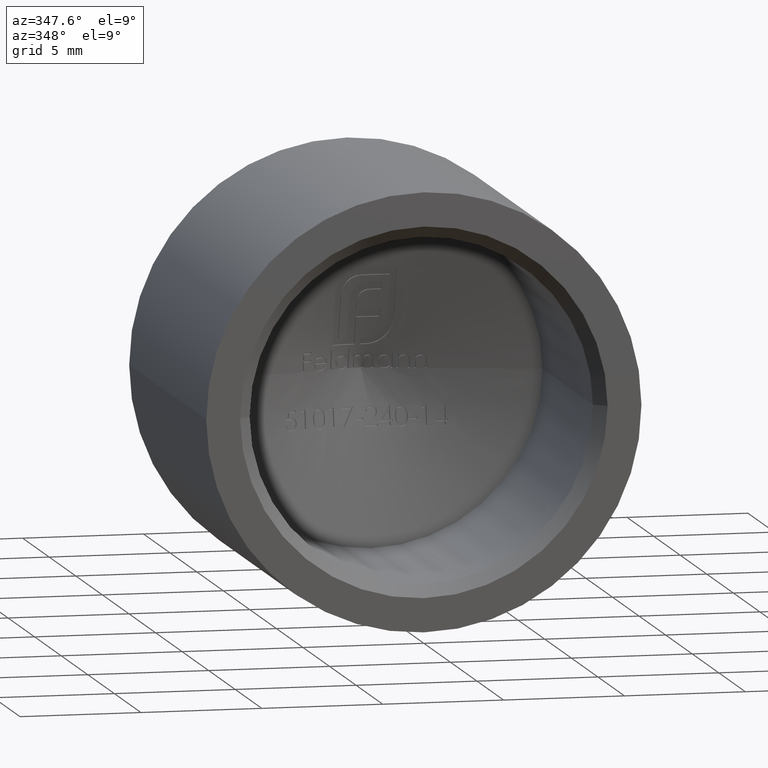
[diagram: clean part render]
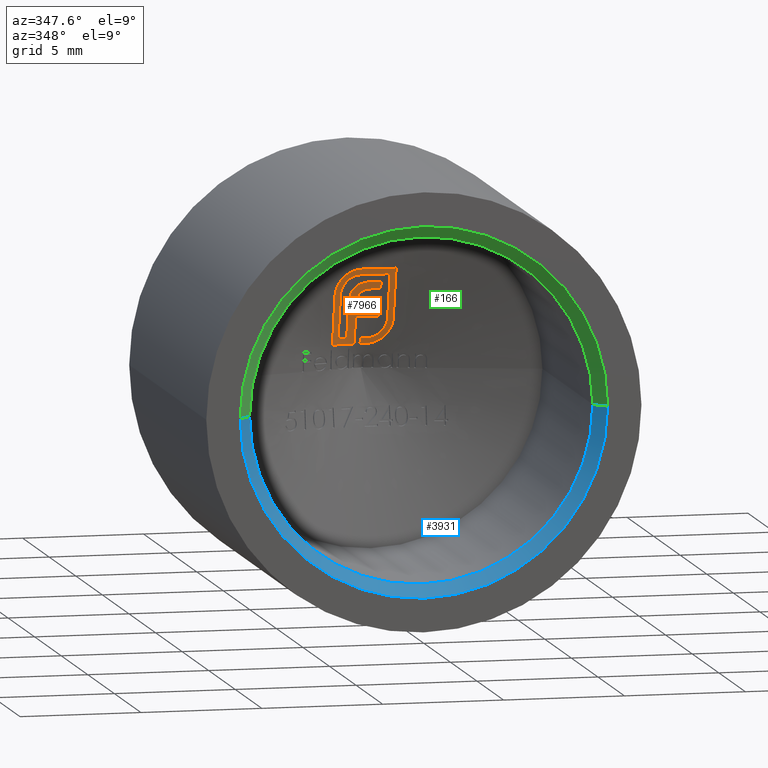
[diagram: same view with three faces highlighted in distinct colors, each labeled with its STEP entity id]
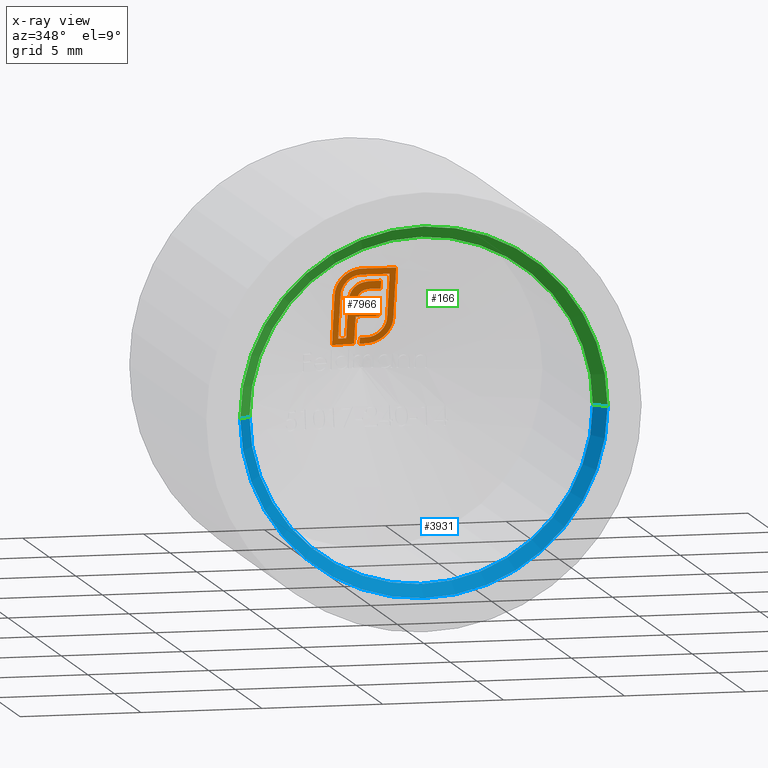
[diagram: x-ray of the same camera — body ghosted, the three highlighted faces saturated]
A machine part, auxiliary view with three faces highlighted in distinct colors.
The next image is the same camera in x-ray (body ghosted, the three faces saturated) — at least one of them is partly hidden behind the body in this view.
Their STEP definitions:

[orange] entity #7966 — the highlighted conical surface has half-angle 75 deg.
#25 = CARTESIAN_POINT ( 'NONE',  ( -0.2208271837044394892, 10.87963206977911135, 4.198047868689132933 ) ) ;
#46 = CARTESIAN_POINT ( 'NONE',  ( 0.6536455928817421768, 11.01174331917845528, 3.652465564041724289 ) ) ;
#59 = CARTESIAN_POINT ( 'NONE',  ( 1.191073256184313811, 11.43205855722340658, 1.780136930600507039 ) ) ;
#79 = CARTESIAN_POINT ( 'NONE',  ( -0.03996251244917391199, 11.12801760613936075, 3.276341227047846250 ) ) ;
#108 = ORIENTED_EDGE ( 'NONE', *, *, #11668, .F. ) ;
#124 = CARTESIAN_POINT ( 'NONE',  ( -1.155135539889375229, 11.00165736864102328, 3.565826977095339245 ) ) ;
#148 = VERTEX_POINT ( 'NONE', #1704 ) ;
#164 = EDGE_CURVE ( 'NONE', #7867, #8579, #2939, .T. ) ;
#206 = CARTESIAN_POINT ( 'NONE',  ( -0.1372191281091166837, 11.14311459738662080, 3.217283663620670087 ) ) ;
#238 = CONICAL_SURFACE ( 'NONE', #4882, 0.02588190451025175476, 1.308996938995750536 ) ;
#261 = EDGE_CURVE ( 'NONE', #4581, #148, #12054, .T. ) ;
#296 = CARTESIAN_POINT ( 'NONE',  ( 0.9830367413575119562, 10.91601549010545824, 3.947183960046360962 ) ) ;
#302 = CARTESIAN_POINT ( 'NONE',  ( -0.3126968602489273441, 11.72522321205531171, 1.000000000000000000 ) ) ;
#327 = CARTESIAN_POINT ( 'NONE',  ( -0.5182543294720672877, 11.10744853578509073, 3.313075253422795186 ) ) ;
#340 = CARTESIAN_POINT ( 'NONE',  ( -1.001657293610527688, 11.57640609660257169, 1.251698499420081268 ) ) ;
#362 = CARTESIAN_POINT ( 'NONE',  ( -0.3126968602489273441, 11.25486714959354906, 2.785646752263383430 ) ) ;
#390 = EDGE_CURVE ( 'NONE', #1028, #8873, #5983, .T. ) ;
#425 = ORIENTED_EDGE ( 'NONE', *, *, #6741, .F. ) ;
#445 = VERTEX_POINT ( 'NONE', #669 ) ;
#448 = CARTESIAN_POINT ( 'NONE',  ( 0.6536455928817421768, 11.40088233175096910, 2.161537207782977088 ) ) ;
#457 = CARTESIAN_POINT ( 'NONE',  ( -1.253355793030608956, 11.57633638178149127, 1.000000000000000000 ) ) ;
#538 = VERTEX_POINT ( 'NONE', #12874 ) ;
#542 = CARTESIAN_POINT ( 'NONE',  ( 0.5078777302037955632, 11.10602823443681864, 3.323074415565955952 ) ) ;
#565 = CARTESIAN_POINT ( 'NONE',  ( 1.234735240777593335, 10.83324338400742981, 4.198882459466442008 ) ) ;
#569 = ORIENTED_EDGE ( 'NONE', *, *, #3509, .F. ) ;
#597 = CARTESIAN_POINT ( 'NONE',  ( 0.1508906820503041479, 11.73498452615122645, 1.000000000000000000 ) ) ;
#638 = CARTESIAN_POINT ( 'NONE',  ( 0.2453583476918172190, 11.73096790411477031, 1.000905635432476570 ) ) ;
#651 = CARTESIAN_POINT ( 'NONE',  ( -0.3126968602489273441, 11.42075563887444112, 2.161537207782977088 ) ) ;
#669 = CARTESIAN_POINT ( 'NONE',  ( -0.4295568778368222262, 11.08168988161551560, 3.422598056918283227 ) ) ;
#724 = CARTESIAN_POINT ( 'NONE',  ( 0.6838237292918030175, 11.64903198048280331, 1.143185625945607464 ) ) ;
#736 = CARTESIAN_POINT ( 'NONE',  ( 1.234735240777593335, 11.35694442021383566, 2.083844558727288909 ) ) ;
#783 = CARTESIAN_POINT ( 'NONE',  ( -0.1015573170549587123, 11.03941868658707115, 3.605933914526483708 ) ) ;
#788 = VERTEX_POINT ( 'NONE', #457 ) ;
#797 = CARTESIAN_POINT ( 'NONE',  ( -0.6594243849602631213, 11.38171765039465733, 2.237439868141614330 ) ) ;
#867 = EDGE_CURVE ( 'NONE', #8457, #8747, #2678, .T. ) ;
#887 = CARTESIAN_POINT ( 'NONE',  ( 0.7358328579985035089, 11.55963200449527051, 1.494407766718016894 ) ) ;
#892 = CARTESIAN_POINT ( 'NONE',  ( -0.4732188624301016944, 10.88538192048867614, 4.155220474873162928 ) ) ;
#904 = CARTESIAN_POINT ( 'NONE',  ( -0.8878809163948264693, 11.59545419095895902, 1.251698499420081934 ) ) ;
#925 = B_SPLINE_CURVE_WITH_KNOTS ( 'NONE', 3,
 ( #5061, #6083, #2912, #3081, #1885, #1930 ),
 .UNSPECIFIED., .F., .F.,
 ( 4, 2, 4 ),
 ( 0.000000000000000000, 0.0001478887417600395851, 0.0002957774835200791702 ),
 .UNSPECIFIED. ) ;
#935 = CARTESIAN_POINT ( 'NONE',  ( 1.139919322385436029, 11.46978949995597397, 1.644612411368698401 ) ) ;
#986 = EDGE_CURVE ( 'NONE', #1712, #1028, #11606, .T. ) ;
#1003 = B_SPLINE_CURVE_WITH_KNOTS ( 'NONE', 3,
 ( #59, #6038, #5917, #935, #9961, #1018, #2053, #6000, #10082, #11088 ),
 .UNSPECIFIED., .F., .F.,
 ( 4, 3, 3, 4 ),
 ( 0.000000000000000000, 0.0001496904950075358953, 0.0002254258711029978309, 0.0003015573197085586583 ),
 .UNSPECIFIED. ) ;
#1018 = CARTESIAN_POINT ( 'NONE',  ( 1.119234215941169452, 11.48270598689731870, 1.600278556593517365 ) ) ;
#1028 = VERTEX_POINT ( 'NONE', #11759 ) ;
#1054 = CARTESIAN_POINT ( 'NONE',  ( -0.7970341974923722539, 11.00227527007243289, 3.660329849972501215 ) ) ;
#1111 = EDGE_CURVE ( 'NONE', #11356, #9452, #4702, .T. ) ;
#1119 = CARTESIAN_POINT ( 'NONE',  ( -0.06944714874109202130, 11.13161412452605425, 3.262423726147349878 ) ) ;
#1121 = CARTESIAN_POINT ( 'NONE',  ( -1.206129675286370162, 11.03039630192773402, 3.435397799288434584 ) ) ;
#1139 = EDGE_CURVE ( 'NONE', #8869, #11775, #8838, .T. ) ;
#1143 = CARTESIAN_POINT ( 'NONE',  ( 0.2157415709314986774, 11.11367724497087650, 3.323074415565955064 ) ) ;
#1166 = CARTESIAN_POINT ( 'NONE',  ( 0.2767399317603448927, 11.02448652352897085, 3.652465564041724289 ) ) ;
#1182 = CARTESIAN_POINT ( 'NONE',  ( -0.7791422275581961765, 10.91179201160238499, 4.008710647144484440 ) ) ;
#1203 = ORIENTED_EDGE ( 'NONE', *, *, #9218, .F. ) ;
#1222 = CARTESIAN_POINT ( 'NONE',  ( -0.1619921371596600712, 11.14861327931482293, 3.195608828266294665 ) ) ;
#1229 = CARTESIAN_POINT ( 'NONE',  ( -0.3879603547800210550, 11.07260171810715654, 3.461779580568326686 ) ) ;
#1335 = CARTESIAN_POINT ( 'NONE',  ( -0.3097984022537131343, 11.23398257449308346, 2.864382196147911230 ) ) ;
#1343 = DIRECTION ( 'NONE',  ( 1.000000000000000000, 0.000000000000000000, 0.000000000000000000 ) ) ;
#1356 = CARTESIAN_POINT ( 'NONE',  ( -1.001657293610527466, 11.43735029000877290, 1.875294946012386221 ) ) ;
#1371 = CARTESIAN_POINT ( 'NONE',  ( -0.2780241077777936276, 11.19453533780558985, 3.015514259386824936 ) ) ;
#1393 = CARTESIAN_POINT ( 'NONE',  ( -1.001657293610527688, 11.20813897576571705, 2.805595506568924424 ) ) ;
#1490 = ORIENTED_EDGE ( 'NONE', *, *, #4388, .F. ) ;
#1520 = ORIENTED_EDGE ( 'NONE', *, *, #1111, .F. ) ;
#1658 = VERTEX_POINT ( 'NONE', #9022 ) ;
#1677 = CARTESIAN_POINT ( 'NONE',  ( 0.8099858947781699570, 11.53144939375871481, 1.574845983025276563 ) ) ;
#1693 = ORIENTED_EDGE ( 'NONE', *, *, #10882, .F. ) ;
#1704 = CARTESIAN_POINT ( 'NONE',  ( -0.3126968602489273441, 11.72522321205531171, 1.000000000000000000 ) ) ;
#1712 = VERTEX_POINT ( 'NONE', #12375 ) ;
#1740 = CARTESIAN_POINT ( 'NONE',  ( 0.03415643410721622836, 11.03176358243605648, 3.635778855980707824 ) ) ;
#1801 = CARTESIAN_POINT ( 'NONE',  ( 0.8716515069738142163, 11.50269864028630629, 1.663728158845151794 ) ) ;
#1860 = CARTESIAN_POINT ( 'NONE',  ( -1.001657293610527688, 11.57640609660257169, 1.251698499420081268 ) ) ;
#1881 = CARTESIAN_POINT ( 'NONE',  ( 0.9830367413575104019, 11.07726358621828666, 3.327015815585791181 ) ) ;
#1885 = CARTESIAN_POINT ( 'NONE',  ( -0.5202346816014425945, 10.88794839241128010, 4.140225942866107900 ) ) ;
#1894 = CARTESIAN_POINT ( 'NONE',  ( -0.7736149235242828492, 11.61261760674426036, 1.251698499420080601 ) ) ;
#1928 = ORIENTED_EDGE ( 'NONE', *, *, #10378, .F. ) ;
#1930 = CARTESIAN_POINT ( 'NONE',  ( -0.4732188624301016944, 10.88538192048867614, 4.155220474873162928 ) ) ;
#1938 = EDGE_CURVE ( 'NONE', #538, #5946, #9769, .T. ) ;
#1943 = CARTESIAN_POINT ( 'NONE',  ( 0.7611759413084984160, 11.62730093474425175, 1.190798080507879497 ) ) ;
#1975 = CARTESIAN_POINT ( 'NONE',  ( -0.1695112343033198243, 10.87996326997864216, 4.198882459466442008 ) ) ;
#2013 = ORIENTED_EDGE ( 'NONE', *, *, #6736, .F. ) ;
#2042 = CARTESIAN_POINT ( 'NONE',  ( -0.9197302088308509926, 10.93342601522541102, 3.895863232141539623 ) ) ;
#2047 = CARTESIAN_POINT ( 'NONE',  ( -1.001657293610527688, 11.12920459761298986, 3.115037900739153098 ) ) ;
#2053 = CARTESIAN_POINT ( 'NONE',  ( 1.107494320517296460, 11.48921241211820465, 1.578852953785505608 ) ) ;
#2058 = CARTESIAN_POINT ( 'NONE',  ( -0.2720138771660565169, 10.87954065866299302, 4.195383536033015837 ) ) ;
#2124 = CARTESIAN_POINT ( 'NONE',  ( -0.09751797577028413488, 11.13585473794454472, 3.245838153666627424 ) ) ;
#2130 = EDGE_LOOP ( 'NONE', ( #2794, #1928, #2148, #4171, #2013, #2650, #1203, #1520, #7491, #4131, #569, #5721, #9773, #9582, #1693, #8783, #6194, #2932, #8436, #12320, #108, #6266, #1490, #425, #3653, #4861, #10095, #10546, #5136, #6157, #5679, #3113, #8685, #12935, #6505, #9065, #12664, #3577, #5616, #9981 ) ) ;
#2148 = ORIENTED_EDGE ( 'NONE', *, *, #12992, .F. ) ;
#2149 = CARTESIAN_POINT ( 'NONE',  ( -0.009631320130870124271, 11.12483853501321462, 3.288401663094821625 ) ) ;
#2169 = CARTESIAN_POINT ( 'NONE',  ( -0.7416116500770251196, 10.90698113677848191, 4.033865841224195670 ) ) ;
#2182 = CARTESIAN_POINT ( 'NONE',  ( -0.2169265141573599176, 11.04871471322907794, 3.565921661557652111 ) ) ;
#2183 = CARTESIAN_POINT ( 'NONE',  ( 0.6536455928817421768, 11.04070041903990074, 3.542679281067534713 ) ) ;
#2191 = CARTESIAN_POINT ( 'NONE',  ( 0.1391448485111264066, 11.11540803262560395, 3.320910636803996230 ) ) ;
#2225 = CARTESIAN_POINT ( 'NONE',  ( -0.2935141347919165700, 11.05767000904220509, 3.526899839852684071 ) ) ;
#2257 = CARTESIAN_POINT ( 'NONE',  ( -0.08282935312548563023, 11.73710010326084863, 1.000000000000000000 ) ) ;
#2259 = CARTESIAN_POINT ( 'NONE',  ( -0.3126968602489273441, 11.33448107199702193, 2.486433740197674602 ) ) ;
#2267 = CARTESIAN_POINT ( 'NONE',  ( 0.5999158856444364307, 10.94082415071121694, 3.947183960046366291 ) ) ;
#2300 = CARTESIAN_POINT ( 'NONE',  ( -0.1695112343033198243, 10.94734729292534325, 3.947183960046360962 ) ) ;
#2302 = CARTESIAN_POINT ( 'NONE',  ( -0.5613876161106979845, 11.12479112325921626, 3.240523179621079386 ) ) ;
#2308 = CARTESIAN_POINT ( 'NONE',  ( 0.6536455928817421768, 11.01174331917845528, 3.652465564041724289 ) ) ;
#2309 = CARTESIAN_POINT ( 'NONE',  ( -1.253355793030608956, 11.10626539894526665, 3.115037900739153098 ) ) ;
#2335 = CARTESIAN_POINT ( 'NONE',  ( -0.2246216627096919438, 11.16708116443686016, 3.122695812206184307 ) ) ;
#2343 = CARTESIAN_POINT ( 'NONE',  ( -0.3044392186170328807, 11.22376042070019331, 2.903316285091131821 ) ) ;
#2376 = CARTESIAN_POINT ( 'NONE',  ( -0.3125302628088179602, 11.24962010461277018, 2.805370680576105169 ) ) ;
#2380 = CARTESIAN_POINT ( 'NONE',  ( -0.3126968602489273441, 11.42075563887444112, 2.161537207782977088 ) ) ;
#2418 = CARTESIAN_POINT ( 'NONE',  ( -0.2459750649275724843, 11.17564890646038656, 3.089028631843722117 ) ) ;
#2424 = CARTESIAN_POINT ( 'NONE',  ( -0.3123650908702658158, 11.24436724898578532, 2.825114377032925450 ) ) ;
#2477 = CARTESIAN_POINT ( 'NONE',  ( -0.08282935312548564410, 11.66984175436772375, 1.251698499420081490 ) ) ;
#2520 = B_SPLINE_CURVE_WITH_KNOTS ( 'NONE', 3,
 ( #1166, #10195, #8306, #2308 ),
 .UNSPECIFIED., .F., .F.,
 ( 4, 4 ),
 ( 0.003593289209155532682, 0.003967905551255705016 ),
 .UNSPECIFIED. ) ;
#2607 = EDGE_CURVE ( 'NONE', #3460, #538, #7663, .T. ) ;
#2650 = ORIENTED_EDGE ( 'NONE', *, *, #261, .F. ) ;
#2661 = CARTESIAN_POINT ( 'NONE',  ( -1.253355793030608956, 11.19340410295477461, 2.764494904898280758 ) ) ;
#2678 = B_SPLINE_CURVE_WITH_KNOTS ( 'NONE', 3,
 ( #12427, #9551, #9431, #11560 ),
 .UNSPECIFIED., .F., .F.,
 ( 4, 4 ),
 ( 0.0009068561004775282540, 0.001139604984120119605 ),
 .UNSPECIFIED. ) ;
#2723 = CARTESIAN_POINT ( 'NONE',  ( 0.2071823631977517954, 11.02610337418313868, 3.651684335950307503 ) ) ;
#2788 = CARTESIAN_POINT ( 'NONE',  ( 0.8984859287905668790, 11.48815402356357396, 1.710939821134884076 ) ) ;
#2794 = ORIENTED_EDGE ( 'NONE', *, *, #12546, .F. ) ;
#2823 = CARTESIAN_POINT ( 'NONE',  ( 1.234735240777593335, 10.83324338400742981, 4.198882459466442008 ) ) ;
#2838 = CARTESIAN_POINT ( 'NONE',  ( 0.8685706911148952658, 11.59282637671787164, 1.273971094198931509 ) ) ;
#2845 = CARTESIAN_POINT ( 'NONE',  ( 0.008697813027241886250, 11.34522666182750328, 2.486433740197677267 ) ) ;
#2867 = CARTESIAN_POINT ( 'NONE',  ( 0.6536455928817421768, 11.31709221494052464, 2.486433740197674602 ) ) ;
#2894 = CARTESIAN_POINT ( 'NONE',  ( 0.6536455928817421768, 11.31709221494052464, 2.486433740197674602 ) ) ;
#2909 = CARTESIAN_POINT ( 'NONE',  ( 0.9830367413575129554, 11.23768836549524686, 2.706542056475521374 ) ) ;
#2912 = CARTESIAN_POINT ( 'NONE',  ( -0.6566389944034701776, 10.89790294692305395, 4.083161113188366720 ) ) ;
#2932 = ORIENTED_EDGE ( 'NONE', *, *, #164, .F. ) ;
#2939 = B_SPLINE_CURVE_WITH_KNOTS ( 'NONE', 3,
 ( #6812, #783, #12806, #8753, #1740, #11650, #2723, #5809 ),
 .UNSPECIFIED., .F., .F.,
 ( 4, 2, 2, 4 ),
 ( 0.000000000000000000, 0.0001044282383505433601, 0.0002088564767010867203, 0.0004177129534021730610 ),
 .UNSPECIFIED. ) ;
#2944 = B_SPLINE_CURVE_WITH_KNOTS ( 'NONE', 3,
 ( #8726, #10933, #1677, #1801, #2788, #5829, #10747, #4718, #11717, #10801 ),
 .UNSPECIFIED., .F., .F.,
 ( 4, 2, 2, 2, 4 ),
 ( 0.000000000000000000, 0.0001679011904529100385, 0.0003358023809058200771, 0.0005037035713587301698, 0.0006716047618116401541 ),
 .UNSPECIFIED. ) ;
#2981 = CARTESIAN_POINT ( 'NONE',  ( -1.132935639662929983, 10.99295222091146229, 3.607034312355986927 ) ) ;
#2983 = CARTESIAN_POINT ( 'NONE',  ( -0.4087857500727238302, 11.07718213189406775, 3.442160090368102665 ) ) ;
#3006 = CARTESIAN_POINT ( 'NONE',  ( 0.9830367413575119562, 10.91601549010545824, 3.947183960046360962 ) ) ;
#3074 = CARTESIAN_POINT ( 'NONE',  ( -0.9204818010160706887, 11.04127114992776271, 3.480792845464526497 ) ) ;
#3081 = CARTESIAN_POINT ( 'NONE',  ( -0.5666846583617537458, 10.89077021554025215, 4.123483998451742849 ) ) ;
#3110 = CARTESIAN_POINT ( 'NONE',  ( -0.05469195162671760396, 11.12981429436380587, 3.269388555799415119 ) ) ;
#3113 = ORIENTED_EDGE ( 'NONE', *, *, #8143, .F. ) ;
#3154 = CARTESIAN_POINT ( 'NONE',  ( -0.08282935312548567186, 11.71469500169154543, 1.083903322683649195 ) ) ;
#3203 = VERTEX_POINT ( 'NONE', #10675 ) ;
#3208 = CARTESIAN_POINT ( 'NONE',  ( 0.6536455928817422878, 11.09848993428822617, 3.323074415565955508 ) ) ;
#3252 = CARTESIAN_POINT ( 'NONE',  ( -0.1901417226212886724, 11.04609983438116849, 3.577327968060420638 ) ) ;
#3288 = CARTESIAN_POINT ( 'NONE',  ( 0.2141195928836886475, 10.95175768259644222, 3.947183960046355633 ) ) ;
#3397 = CARTESIAN_POINT ( 'NONE',  ( -0.1740058503643927001, 11.15144100275079886, 3.184383405681419976 ) ) ;
#3433 = VERTEX_POINT ( 'NONE', #5213 ) ;
#3460 = VERTEX_POINT ( 'NONE', #2300 ) ;
#3477 = CARTESIAN_POINT ( 'NONE',  ( -0.1695112343033198243, 10.87996326997864216, 4.198882459466442008 ) ) ;
#3509 = EDGE_CURVE ( 'NONE', #12812, #11516, #9011, .T. ) ;
#3577 = ORIENTED_EDGE ( 'NONE', *, *, #3771, .F. ) ;
#3590 = VERTEX_POINT ( 'NONE', #5559 ) ;
#3653 = ORIENTED_EDGE ( 'NONE', *, *, #1938, .F. ) ;
#3771 = EDGE_CURVE ( 'NONE', #5419, #9624, #4541, .T. ) ;
#3772 = CARTESIAN_POINT ( 'NONE',  ( 0.07310270948945662983, 11.67064168099148702, 1.251698499420082156 ) ) ;
#3817 = CARTESIAN_POINT ( 'NONE',  ( 1.231212488167687580, 11.38099014833793632, 1.981125456543868513 ) ) ;
#3822 = EDGE_CURVE ( 'NONE', #10813, #11356, #5729, .T. ) ;
#3841 = CARTESIAN_POINT ( 'NONE',  ( 0.5685218004715163476, 11.61071721936689016, 1.361426098264004514 ) ) ;
#3882 = VERTEX_POINT ( 'NONE', #12231 ) ;
#3892 = CARTESIAN_POINT ( 'NONE',  ( 0.6536455928817423988, 11.34514885322025179, 2.378167251167522256 ) ) ;
#3933 = CARTESIAN_POINT ( 'NONE',  ( 0.6536455928817421768, 11.40088233175096910, 2.161537207782977088 ) ) ;
#4005 = B_SPLINE_CURVE_WITH_KNOTS ( 'NONE', 3,
 ( #8318, #1393, #11253, #1356, #10408, #340 ),
 .UNSPECIFIED., .F., .F.,
 ( 4, 2, 4 ),
 ( 0.007316437575265568108, 0.008274481468973736778, 0.009232525362681907183 ),
 .UNSPECIFIED. ) ;
#4058 = CARTESIAN_POINT ( 'NONE',  ( -0.9815632236541511624, 10.94644555103877259, 3.830608586574399066 ) ) ;
#4090 = CARTESIAN_POINT ( 'NONE',  ( -1.110170167085001491, 10.98423442149373486, 3.647970947980651690 ) ) ;
#4097 = CARTESIAN_POINT ( 'NONE',  ( -1.000324239987038011, 11.11554685500337669, 3.169008299199633338 ) ) ;
#4122 = CARTESIAN_POINT ( 'NONE',  ( -1.191512374465929058, 11.02042085656742110, 3.479903192699155934 ) ) ;
#4131 = ORIENTED_EDGE ( 'NONE', *, *, #11886, .F. ) ;
#4138 = CARTESIAN_POINT ( 'NONE',  ( -1.001657293610527688, 11.57640609660257169, 1.251698499420081268 ) ) ;
#4169 = CARTESIAN_POINT ( 'NONE',  ( -0.08282935312548563023, 11.73710010326084863, 1.000000000000000000 ) ) ;
#4170 = CARTESIAN_POINT ( 'NONE',  ( -0.2433240541105521904, 11.05129178644495447, 3.554680266185218596 ) ) ;
#4171 = ORIENTED_EDGE ( 'NONE', *, *, #9445, .F. ) ;
#4219 = CARTESIAN_POINT ( 'NONE',  ( -0.9414907658093427667, 11.64165708409981548, 1.000000000000000000 ) ) ;
#4242 = EDGE_CURVE ( 'NONE', #12292, #10422, #6556, .T. ) ;
#4251 = CARTESIAN_POINT ( 'NONE',  ( -0.3881521920414173765, 10.95017501941942761, 3.921489313879029659 ) ) ;
#4312 = CARTESIAN_POINT ( 'NONE',  ( 0.1508906820503041479, 11.66814711659315584, 1.251698499420081268 ) ) ;
#4349 = CARTESIAN_POINT ( 'NONE',  ( -0.6279261076754379944, 11.70001483104732465, 1.000000000000000000 ) ) ;
#4379 = CARTESIAN_POINT ( 'NONE',  ( -0.4295568778368222262, 11.08168988161551560, 3.422598056918283227 ) ) ;
#4386 = CARTESIAN_POINT ( 'NONE',  ( -0.2246393147396445467, 10.94709661952760804, 3.945752880880291080 ) ) ;
#4388 = EDGE_CURVE ( 'NONE', #5016, #3882, #12735, .T. ) ;
#4406 = CARTESIAN_POINT ( 'NONE',  ( -0.2641474625173489410, 11.18476930466364827, 3.053365038213694760 ) ) ;
#4419 = CARTESIAN_POINT ( 'NONE',  ( -0.1695112343033198243, 10.94734729292534325, 3.947183960046360962 ) ) ;
#4501 = CARTESIAN_POINT ( 'NONE',  ( 0.3616323699330113994, 11.11114467884215529, 3.323074415565953288 ) ) ;
#4541 = B_SPLINE_CURVE_WITH_KNOTS ( 'NONE', 3,
 ( #2823, #6869, #4892, #9911 ),
 .UNSPECIFIED., .F., .F.,
 ( 4, 4 ),
 ( 0.01351692939056048717, 0.01569592371879366052 ),
 .UNSPECIFIED. ) ;
#4548 = B_SPLINE_CURVE_WITH_KNOTS ( 'NONE', 3,
 ( #8831, #12847, #10767, #12896, #6852, #9802 ),
 .UNSPECIFIED., .F., .F.,
 ( 4, 2, 4 ),
 ( 0.000000000000000000, 0.0002127965768774604197, 0.0004255931537549208395 ),
 .UNSPECIFIED. ) ;
#4550 = CARTESIAN_POINT ( 'NONE',  ( 0.2157415709314986774, 11.11367724497087650, 3.323074415565955064 ) ) ;
#4581 = VERTEX_POINT ( 'NONE', #2380 ) ;
#4632 = EDGE_CURVE ( 'NONE', #9213, #445, #8944, .T. ) ;
#4641 = CARTESIAN_POINT ( 'NONE',  ( -1.253355793030608956, 11.10626539894526665, 3.115037900739153098 ) ) ;
#4702 = B_SPLINE_CURVE_WITH_KNOTS ( 'NONE', 3,
 ( #2867, #3892, #9916, #3933 ),
 .UNSPECIFIED., .F., .F.,
 ( 4, 4 ),
 ( 0.002156097873354069234, 0.002491624461603421728 ),
 .UNSPECIFIED. ) ;
#4718 = CARTESIAN_POINT ( 'NONE',  ( 0.9783822107202509999, 11.41576023021893249, 1.973524227884821958 ) ) ;
#4734 = CARTESIAN_POINT ( 'NONE',  ( 1.216583980834385903, 11.40609753338874377, 1.879451003292806233 ) ) ;
#4765 = CARTESIAN_POINT ( 'NONE',  ( -1.253355793030608956, 11.57633638178149127, 1.000000000000000000 ) ) ;
#4803 = CARTESIAN_POINT ( 'NONE',  ( 0.2612377654449858366, 11.66229178147727907, 1.256723893405600867 ) ) ;
#4812 = CARTESIAN_POINT ( 'NONE',  ( 0.9830367413575119562, 11.38859139670818799, 2.083844558727288909 ) ) ;
#4854 = CARTESIAN_POINT ( 'NONE',  ( 0.9830367413575119562, 11.38859139670818799, 2.083844558727288909 ) ) ;
#4861 = ORIENTED_EDGE ( 'NONE', *, *, #2607, .F. ) ;
#4882 = AXIS2_PLACEMENT_3D ( 'NONE', #6359, #8307, #1343 ) ;
#4892 = CARTESIAN_POINT ( 'NONE',  ( 1.234735240777593113, 11.19381735056558469, 2.791489715239416469 ) ) ;
#4896 = CARTESIAN_POINT ( 'NONE',  ( 0.6570563704782612646, 11.58631957697354586, 1.421931595174466434 ) ) ;
#4917 = EDGE_CURVE ( 'NONE', #3882, #11070, #5910, .T. ) ;
#5016 = VERTEX_POINT ( 'NONE', #4138 ) ;
#5053 = CARTESIAN_POINT ( 'NONE',  ( -1.010811545101904851, 10.95335335344658745, 3.796295761498214461 ) ) ;
#5061 = CARTESIAN_POINT ( 'NONE',  ( -0.7416116500770251196, 10.90698113677848191, 4.033865841224195670 ) ) ;
#5081 = CARTESIAN_POINT ( 'NONE',  ( -0.1348384818321861078, 11.04175467250668596, 3.595961819273951310 ) ) ;
#5101 = B_SPLINE_CURVE_WITH_KNOTS ( 'NONE', 3,
 ( #6071, #7080, #7041, #5053, #4058, #2042, #7309, #12328, #1182, #7395 ),
 .UNSPECIFIED., .F., .F.,
 ( 4, 2, 2, 2, 4 ),
 ( 0.000000000000000000, 0.0001358462477003052405, 0.0002716924954006104810, 0.0004075387431009167244, 0.0005433849908012229135 ),
 .UNSPECIFIED. ) ;
#5136 = ORIENTED_EDGE ( 'NONE', *, *, #12368, .F. ) ;
#5188 = CARTESIAN_POINT ( 'NONE',  ( -0.08282935312548558859, 11.69227267776816248, 1.167802065948902124 ) ) ;
#5213 = CARTESIAN_POINT ( 'NONE',  ( -1.110170167085001491, 10.98423442149373486, 3.647970947980651690 ) ) ;
#5216 = EDGE_CURVE ( 'NONE', #10422, #1658, #12978, .T. ) ;
#5232 = B_SPLINE_CURVE_WITH_KNOTS ( 'NONE', 3,
 ( #4169, #3154, #5188, #5333 ),
 .UNSPECIFIED., .F., .F.,
 ( 4, 4 ),
 ( 0.001034895727824082772, 0.001294919390478458440 ),
 .UNSPECIFIED. ) ;
#5274 = CARTESIAN_POINT ( 'NONE',  ( -0.3126968602489273441, 11.25486714959354906, 2.785646752263383430 ) ) ;
#5276 = CARTESIAN_POINT ( 'NONE',  ( -0.4403168373305554884, 10.95294459245029195, 3.905539645034919349 ) ) ;
#5301 = CARTESIAN_POINT ( 'NONE',  ( 0.3327782351761713886, 11.42576842444588614, 2.161537207782977088 ) ) ;
#5319 = CARTESIAN_POINT ( 'NONE',  ( -0.7194798141223071042, 10.98612738528478872, 3.737757461665535796 ) ) ;
#5333 = CARTESIAN_POINT ( 'NONE',  ( -0.08282935312548564410, 11.66984175436772375, 1.251698499420081490 ) ) ;
#5359 = CARTESIAN_POINT ( 'NONE',  ( -0.3126968602489273441, 11.33448107199702193, 2.486433740197674602 ) ) ;
#5403 = CARTESIAN_POINT ( 'NONE',  ( -1.001657293610527688, 11.12920459761298986, 3.115037900739153098 ) ) ;
#5419 = VERTEX_POINT ( 'NONE', #565 ) ;
#5429 = CARTESIAN_POINT ( 'NONE',  ( -0.1923863443848251864, 11.15633837225045433, 3.165074532621362291 ) ) ;
#5559 = CARTESIAN_POINT ( 'NONE',  ( 0.6536455928817421768, 11.01174331917845528, 3.652465564041724289 ) ) ;
#5596 = B_SPLINE_CURVE_WITH_KNOTS ( 'NONE', 3,
 ( #4765, #7646, #12836, #7829, #2661, #4641 ),
 .UNSPECIFIED., .F., .F.,
 ( 4, 2, 4 ),
 ( 0.008786107838660277974, 0.009841830992379261428, 0.01089755414609824662 ),
 .UNSPECIFIED. ) ;
#5616 = ORIENTED_EDGE ( 'NONE', *, *, #9924, .F. ) ;
#5679 = ORIENTED_EDGE ( 'NONE', *, *, #4242, .F. ) ;
#5695 = CARTESIAN_POINT ( 'NONE',  ( 0.5182391580436169765, 11.68924278345265400, 1.062772891488430016 ) ) ;
#5721 = ORIENTED_EDGE ( 'NONE', *, *, #9235, .F. ) ;
#5729 = B_SPLINE_CURVE_WITH_KNOTS ( 'NONE', 3,
 ( #10910, #2845, #9901, #2894 ),
 .UNSPECIFIED., .F., .F.,
 ( 4, 4 ),
 ( 0.002076810387763900964, 0.003039426833845971457 ),
 .UNSPECIFIED. ) ;
#5746 = CARTESIAN_POINT ( 'NONE',  ( 0.6436415202080373321, 11.65969747270836088, 1.120839701199759952 ) ) ;
#5809 = CARTESIAN_POINT ( 'NONE',  ( 0.2767399317603448927, 11.02448652352897085, 3.652465564041724289 ) ) ;
#5828 = CARTESIAN_POINT ( 'NONE',  ( -0.6594243849602644536, 11.50977869916793317, 1.745660019775290062 ) ) ;
#5829 = CARTESIAN_POINT ( 'NONE',  ( 0.9412632778261863509, 11.45872080839688323, 1.812522636688302047 ) ) ;
#5899 = EDGE_CURVE ( 'NONE', #11775, #3460, #7789, .T. ) ;
#5910 = B_SPLINE_CURVE_WITH_KNOTS ( 'NONE', 3,
 ( #7821, #5828, #797, #8856 ),
 .UNSPECIFIED., .F., .F.,
 ( 4, 4 ),
 ( 0.01129406252676171465, 0.01281272260450417276 ),
 .UNSPECIFIED. ) ;
#5917 = CARTESIAN_POINT ( 'NONE',  ( 1.159848758494165688, 11.45707085718881935, 1.688552683479507044 ) ) ;
#5946 = VERTEX_POINT ( 'NONE', #5403 ) ;
#5983 = B_SPLINE_CURVE_WITH_KNOTS ( 'NONE', 3,
 ( #8215, #11245, #79, #3110, #1119, #8183, #2124, #6234, #9184, #206, #7255, #1222, #8264 ),
 .UNSPECIFIED., .F., .F.,
 ( 4, 3, 3, 3, 4 ),
 ( 0.000000000000000000, 4.916011534716130339E-05, 9.845895257792746530E-05, 0.0001479516712229819882, 0.0001980046889935523123 ),
 .UNSPECIFIED. ) ;
#5995 = CARTESIAN_POINT ( 'NONE',  ( 0.4213317924720296204, 11.64172858441363978, 1.293022771506558533 ) ) ;
#6000 = CARTESIAN_POINT ( 'NONE',  ( 1.095690332344828599, 11.49575435849672189, 1.557310380108104964 ) ) ;
#6021 = CARTESIAN_POINT ( 'NONE',  ( -1.252466543385390763, 11.08329625305261956, 3.207796349827883198 ) ) ;
#6038 = CARTESIAN_POINT ( 'NONE',  ( 1.176257902578488279, 11.44450828603998893, 1.734145590540119075 ) ) ;
#6045 = CARTESIAN_POINT ( 'NONE',  ( -0.4732188624301016944, 10.88538192048867614, 4.155220474873162928 ) ) ;
#6071 = CARTESIAN_POINT ( 'NONE',  ( -1.110170167085001491, 10.98423442149373486, 3.647970947980651690 ) ) ;
#6083 = CARTESIAN_POINT ( 'NONE',  ( -0.6996550668650061144, 10.90226679594870163, 4.059468432811613958 ) ) ;
#6157 = ORIENTED_EDGE ( 'NONE', *, *, #5216, .F. ) ;
#6194 = ORIENTED_EDGE ( 'NONE', *, *, #11785, .F. ) ;
#6234 = CARTESIAN_POINT ( 'NONE',  ( -0.1113269035945815694, 11.13807779550534782, 3.237122970843550718 ) ) ;
#6239 = EDGE_CURVE ( 'NONE', #12533, #10137, #7219, .T. ) ;
#6266 = ORIENTED_EDGE ( 'NONE', *, *, #4917, .F. ) ;
#6279 = CARTESIAN_POINT ( 'NONE',  ( -0.5889536814880397264, 10.96608810236868692, 3.836249163191938205 ) ) ;
#6359 = CARTESIAN_POINT ( 'NONE',  ( 5.986601342733313843E-17, 11.99903184888985308, 0.000000000000000000 ) ) ;
#6370 = CARTESIAN_POINT ( 'NONE',  ( -1.253355793030608956, 11.57633638178149127, 1.000000000000000000 ) ) ;
#6404 = VERTEX_POINT ( 'NONE', #8577 ) ;
#6505 = ORIENTED_EDGE ( 'NONE', *, *, #8557, .F. ) ;
#6556 = B_SPLINE_CURVE_WITH_KNOTS ( 'NONE', 3,
 ( #7707, #8789, #3772, #11678 ),
 .UNSPECIFIED., .F., .F.,
 ( 4, 4 ),
 ( 0.001166981453185870652, 0.001399513744521850653 ),
 .UNSPECIFIED. ) ;
#6638 = CARTESIAN_POINT ( 'NONE',  ( -0.3126968602489296756, 11.52335790160243256, 1.774634311427321975 ) ) ;
#6656 = VERTEX_POINT ( 'NONE', #12183 ) ;
#6680 = CARTESIAN_POINT ( 'NONE',  ( -0.3126968602489273441, 11.25486714959354906, 2.785646752263383430 ) ) ;
#6712 = CARTESIAN_POINT ( 'NONE',  ( 0.6536455928817421768, 11.40088233175096910, 2.161537207782977088 ) ) ;
#6736 = EDGE_CURVE ( 'NONE', #148, #788, #10152, .T. ) ;
#6741 = EDGE_CURVE ( 'NONE', #5946, #5016, #4005, .T. ) ;
#6802 = CARTESIAN_POINT ( 'NONE',  ( 0.9336338775763688425, 11.56912334924301788, 1.336547569319930684 ) ) ;
#6812 = CARTESIAN_POINT ( 'NONE',  ( -0.1348384818321861078, 11.04175467250668596, 3.595961819273951310 ) ) ;
#6852 = CARTESIAN_POINT ( 'NONE',  ( -0.6220170122622290521, 11.16657069154209303, 3.070454427105603123 ) ) ;
#6869 = CARTESIAN_POINT ( 'NONE',  ( 1.234735240777593113, 11.01407691862236859, 3.495428016597811549 ) ) ;
#6896 = CARTESIAN_POINT ( 'NONE',  ( 0.6838237292918030175, 11.64903198048280331, 1.143185625945607464 ) ) ;
#6919 = CARTESIAN_POINT ( 'NONE',  ( 0.3694926773152615307, 11.64993882679340409, 1.277287096742165451 ) ) ;
#7041 = CARTESIAN_POINT ( 'NONE',  ( -1.063295461113322293, 10.96828726561836831, 3.724005627917310157 ) ) ;
#7045 = CARTESIAN_POINT ( 'NONE',  ( -0.8331347471921077830, 11.01094367781048255, 3.619039242962044156 ) ) ;
#7080 = CARTESIAN_POINT ( 'NONE',  ( -1.086725647640488068, 10.97631628615695298, 3.685994709555677318 ) ) ;
#7219 = B_SPLINE_CURVE_WITH_KNOTS ( 'NONE', 3,
 ( #6045, #11017, #7999, #2058, #25, #1975 ),
 .UNSPECIFIED., .F., .F.,
 ( 4, 2, 4 ),
 ( 0.000000000000000000, 0.0001541185748885252568, 0.0003082371497770505136 ),
 .UNSPECIFIED. ) ;
#7255 = CARTESIAN_POINT ( 'NONE',  ( -0.1499646508626528152, 11.14576241384497379, 3.206849289909377010 ) ) ;
#7295 = CARTESIAN_POINT ( 'NONE',  ( -0.7589480263125919501, 10.99391832667734725, 3.699980076687352515 ) ) ;
#7309 = CARTESIAN_POINT ( 'NONE',  ( -0.8870439190843030230, 10.92726491180290971, 3.927035632988072233 ) ) ;
#7333 = CARTESIAN_POINT ( 'NONE',  ( -0.5833405145471806108, 11.13728296828894138, 3.189192163371571631 ) ) ;
#7354 = CARTESIAN_POINT ( 'NONE',  ( -0.1624581835211450498, 11.04396932292859645, 3.586655161486281607 ) ) ;
#7377 = CARTESIAN_POINT ( 'NONE',  ( -0.3072755841328103088, 11.22885931310482199, 2.883885208889554352 ) ) ;
#7389 = CARTESIAN_POINT ( 'NONE',  ( -0.1695112343033198243, 10.94734729292534325, 3.947183960046360962 ) ) ;
#7395 = CARTESIAN_POINT ( 'NONE',  ( -0.7416116500770251196, 10.90698113677848191, 4.033865841224195670 ) ) ;
#7421 = CARTESIAN_POINT ( 'NONE',  ( -0.6787559661687749823, 10.97859261501091765, 3.773979395617333310 ) ) ;
#7460 = CARTESIAN_POINT ( 'NONE',  ( -0.4684758631825455821, 11.09126329192009486, 3.381483360198423771 ) ) ;
#7491 = ORIENTED_EDGE ( 'NONE', *, *, #3822, .F. ) ;
#7547 = CARTESIAN_POINT ( 'NONE',  ( 0.2978888455248117628, 10.88501514256721769, 4.198882459466442008 ) ) ;
#7584 = CARTESIAN_POINT ( 'NONE',  ( 1.234735240777593335, 10.83324338400742981, 4.198882459466442008 ) ) ;
#7646 = CARTESIAN_POINT ( 'NONE',  ( -1.253355793030608956, 11.51684363634713826, 1.356003455522683199 ) ) ;
#7663 = B_SPLINE_CURVE_WITH_KNOTS ( 'NONE', 3,
 ( #7389, #4386, #10280, #4251, #5276, #12313, #6279, #7421, #5319, #7295 ),
 .UNSPECIFIED., .F., .F.,
 ( 4, 2, 2, 2, 4 ),
 ( 0.000000000000000000, 0.0001650699929171069343, 0.0003301399858342138685, 0.0004952099787513203691, 0.0006602799716684269781 ),
 .UNSPECIFIED. ) ;
#7707 = CARTESIAN_POINT ( 'NONE',  ( -0.08282935312548564410, 11.66984175436772375, 1.251698499420081490 ) ) ;
#7716 = B_SPLINE_CURVE_WITH_KNOTS ( 'NONE', 3,
 ( #724, #5746, #8784, #5695, #12702, #7785, #638, #597 ),
 .UNSPECIFIED., .F., .F.,
 ( 4, 2, 2, 4 ),
 ( 0.000000000000000000, 0.0001413089714473461319, 0.0002826179428946922639, 0.0005652358857893850699 ),
 .UNSPECIFIED. ) ;
#7785 = CARTESIAN_POINT ( 'NONE',  ( 0.3391926254980826005, 11.72083075014476528, 1.011320841512020063 ) ) ;
#7789 = B_SPLINE_CURVE_WITH_KNOTS ( 'NONE', 3,
 ( #296, #2267, #3288, #4419 ),
 .UNSPECIFIED., .F., .F.,
 ( 4, 4 ),
 ( 0.003474011795145056074, 0.004623339909500099112 ),
 .UNSPECIFIED. ) ;
#7808 = CARTESIAN_POINT ( 'NONE',  ( -0.8946738547044056356, 11.03070462604673097, 3.528289486708229283 ) ) ;
#7821 = CARTESIAN_POINT ( 'NONE',  ( -0.6594243849602638985, 11.62687893752128332, 1.251698499420081268 ) ) ;
#7824 = CARTESIAN_POINT ( 'NONE',  ( -0.1740058503643927001, 11.15144100275079886, 3.184383405681419976 ) ) ;
#7829 = CARTESIAN_POINT ( 'NONE',  ( -1.253355793030608734, 11.27890606027897391, 2.413552837277397778 ) ) ;
#7867 = VERTEX_POINT ( 'NONE', #5081 ) ;
#7965 = CARTESIAN_POINT ( 'NONE',  ( -0.6594243849602638985, 11.62687893752128332, 1.251698499420081268 ) ) ;
#7966 = ADVANCED_FACE ( 'NONE', ( #10778 ), #238, .F. ) ;
#7995 = CARTESIAN_POINT ( 'NONE',  ( -0.6594243849602638985, 11.25365152987183670, 2.729143007495610007 ) ) ;
#7999 = CARTESIAN_POINT ( 'NONE',  ( -0.3737251322112432605, 10.88135144991829328, 4.180764333610194505 ) ) ;
#8003 = VERTEX_POINT ( 'NONE', #2309 ) ;
#8024 = CARTESIAN_POINT ( 'NONE',  ( -0.4295568778368222262, 11.08168988161551560, 3.422598056918283227 ) ) ;
#8143 = EDGE_CURVE ( 'NONE', #8747, #12292, #5232, .T. ) ;
#8183 = CARTESIAN_POINT ( 'NONE',  ( -0.08376301980938301306, 11.13364036915093003, 3.254519273406546453 ) ) ;
#8198 = CARTESIAN_POINT ( 'NONE',  ( 0.02664119433771658038, 11.12173077278641387, 3.300106277060725901 ) ) ;
#8215 = CARTESIAN_POINT ( 'NONE',  ( -0.009631320130870124271, 11.12483853501321462, 3.288401663094821625 ) ) ;
#8234 = CARTESIAN_POINT ( 'NONE',  ( 0.06342001417806003571, 11.11899423993848757, 3.309833828674837441 ) ) ;
#8264 = CARTESIAN_POINT ( 'NONE',  ( -0.1740058503643927001, 11.15144100275079886, 3.184383405681419976 ) ) ;
#8306 = CARTESIAN_POINT ( 'NONE',  ( 0.5281485726114218959, 11.01766706757288539, 3.652465564041724289 ) ) ;
#8307 = DIRECTION ( 'NONE',  ( 1.994889995923048226E-17, -1.000000000000000000, 0.000000000000000000 ) ) ;
#8318 = CARTESIAN_POINT ( 'NONE',  ( -1.001657293610527688, 11.12920459761298986, 3.115037900739153098 ) ) ;
#8325 = B_SPLINE_CURVE_WITH_KNOTS ( 'NONE', 3,
 ( #8642, #542, #4501, #4550 ),
 .UNSPECIFIED., .F., .F.,
 ( 4, 4 ),
 ( 0.003202669383318749573, 0.003639052225299160229 ),
 .UNSPECIFIED. ) ;
#8373 = CARTESIAN_POINT ( 'NONE',  ( -0.2355255527158867379, 11.17132463882593463, 3.106033693142722374 ) ) ;
#8397 = CARTESIAN_POINT ( 'NONE',  ( -0.3183659134641343424, 11.06098505988087055, 3.512416928663450566 ) ) ;
#8424 = B_SPLINE_CURVE_WITH_KNOTS ( 'NONE', 3,
 ( #5274, #10371, #11453, #5359 ),
 .UNSPECIFIED., .F., .F.,
 ( 4, 4 ),
 ( 0.002756269601570323063, 0.003065894310461165020 ),
 .UNSPECIFIED. ) ;
#8436 = ORIENTED_EDGE ( 'NONE', *, *, #10380, .F. ) ;
#8452 = CARTESIAN_POINT ( 'NONE',  ( -0.2101056452403343988, 11.16143195591333637, 3.144877585065624093 ) ) ;
#8457 = VERTEX_POINT ( 'NONE', #11732 ) ;
#8495 = CARTESIAN_POINT ( 'NONE',  ( -0.2988977318179169562, 11.21379857170957450, 2.941279323234382126 ) ) ;
#8534 = CARTESIAN_POINT ( 'NONE',  ( 0.7681807713667512250, 10.86851176101246885, 4.198882459466442008 ) ) ;
#8557 = EDGE_CURVE ( 'NONE', #6656, #3203, #10293, .T. ) ;
#8577 = CARTESIAN_POINT ( 'NONE',  ( 1.191073256184313811, 11.43205855722340658, 1.780136930600507039 ) ) ;
#8579 = VERTEX_POINT ( 'NONE', #10017 ) ;
#8642 = CARTESIAN_POINT ( 'NONE',  ( 0.6536455928817422878, 11.09848993428822617, 3.323074415565955508 ) ) ;
#8678 = B_SPLINE_CURVE_WITH_KNOTS ( 'NONE', 3,
 ( #46, #2183, #11205, #3208 ),
 .UNSPECIFIED., .F., .F.,
 ( 4, 4 ),
 ( 0.003339285126954443482, 0.003679907414514835707 ),
 .UNSPECIFIED. ) ;
#8685 = ORIENTED_EDGE ( 'NONE', *, *, #867, .F. ) ;
#8726 = CARTESIAN_POINT ( 'NONE',  ( 0.7358328579985035089, 11.55963200449527051, 1.494407766718016894 ) ) ;
#8747 = VERTEX_POINT ( 'NONE', #2257 ) ;
#8753 = CARTESIAN_POINT ( 'NONE',  ( -0.0002470717969095272116, 11.03318451084041563, 3.630633208510737120 ) ) ;
#8783 = ORIENTED_EDGE ( 'NONE', *, *, #11353, .F. ) ;
#8784 = CARTESIAN_POINT ( 'NONE',  ( 0.6031763396999197946, 11.67015053735098462, 1.098981505368564981 ) ) ;
#8789 = CARTESIAN_POINT ( 'NONE',  ( -0.005020504437569639662, 11.67121838421272706, 1.251698499420080823 ) ) ;
#8797 = B_SPLINE_CURVE_WITH_KNOTS ( 'NONE', 3,
 ( #448, #5301, #12345, #12462 ),
 .UNSPECIFIED., .F., .F.,
 ( 4, 4 ),
 ( 0.001731031256854926714, 0.002695401521603120118 ),
 .UNSPECIFIED. ) ;
#8805 = CARTESIAN_POINT ( 'NONE',  ( -0.9969254707167661822, 11.10207975485745990, 3.222772544524310945 ) ) ;
#8831 = CARTESIAN_POINT ( 'NONE',  ( -0.6594243849602638985, 11.25365152987183670, 2.729143007495610007 ) ) ;
#8838 = B_SPLINE_CURVE_WITH_KNOTS ( 'NONE', 3,
 ( #4854, #2909, #1881, #8948 ),
 .UNSPECIFIED., .F., .F.,
 ( 4, 4 ),
 ( 0.002179715866877070599, 0.004096784512766174155 ),
 .UNSPECIFIED. ) ;
#8843 = CARTESIAN_POINT ( 'NONE',  ( -0.9771380555030160231, 11.07635416065191158, 3.329007091042930799 ) ) ;
#8856 = CARTESIAN_POINT ( 'NONE',  ( -0.6594243849602638985, 11.25365152987183670, 2.729143007495610007 ) ) ;
#8869 = VERTEX_POINT ( 'NONE', #4812 ) ;
#8873 = VERTEX_POINT ( 'NONE', #7824 ) ;
#8877 = CARTESIAN_POINT ( 'NONE',  ( 1.044965805188693864, 11.52096067743123342, 1.477969587715892263 ) ) ;
#8880 = CARTESIAN_POINT ( 'NONE',  ( 1.204728413421271238, 11.41902641035270172, 1.829519832489686415 ) ) ;
#8944 = B_SPLINE_CURVE_WITH_KNOTS ( 'NONE', 3,
 ( #10365, #7333, #2302, #327, #9403, #7460, #10324, #4379 ),
 .UNSPECIFIED., .F., .F.,
 ( 4, 2, 2, 4 ),
 ( 0.000000000000000000, 0.0001714875172884779012, 0.0002572312759327168518, 0.0003429750345769558024 ),
 .UNSPECIFIED. ) ;
#8948 = CARTESIAN_POINT ( 'NONE',  ( 0.9830367413575119562, 10.91601549010545824, 3.947183960046360962 ) ) ;
#8963 = CARTESIAN_POINT ( 'NONE',  ( 1.069718622535346109, 11.50889901795719261, 1.515596671005931873 ) ) ;
#9001 = CARTESIAN_POINT ( 'NONE',  ( 0.7225141736463790432, 11.63823396383264530, 1.167000204781718509 ) ) ;
#9011 = B_SPLINE_CURVE_WITH_KNOTS ( 'NONE', 3,
 ( #9397, #11400, #8495, #2343, #7377, #1335, #12515, #2424, #2376, #362 ),
 .UNSPECIFIED., .F., .F.,
 ( 4, 3, 3, 4 ),
 ( 0.000000000000000000, 0.0001189127789049721124, 0.0001795930550203260500, 0.0002406153749452432148 ),
 .UNSPECIFIED. ) ;
#9022 = CARTESIAN_POINT ( 'NONE',  ( 0.7358328579985035089, 11.55963200449527051, 1.494407766718016894 ) ) ;
#9065 = ORIENTED_EDGE ( 'NONE', *, *, #12464, .F. ) ;
#9184 = CARTESIAN_POINT ( 'NONE',  ( -0.1246291608954841756, 11.14049909678746708, 3.227590688719622847 ) ) ;
#9213 = VERTEX_POINT ( 'NONE', #11349 ) ;
#9218 = EDGE_CURVE ( 'NONE', #9452, #4581, #8797, .T. ) ;
#9235 = EDGE_CURVE ( 'NONE', #8873, #12812, #12676, .T. ) ;
#9345 = CARTESIAN_POINT ( 'NONE',  ( -0.2549876498845207728, 11.18017216010603221, 3.071341303252500321 ) ) ;
#9374 = EDGE_CURVE ( 'NONE', #3203, #8457, #7716, .T. ) ;
#9380 = CARTESIAN_POINT ( 'NONE',  ( -0.3653599548468550728, 11.06856240158360727, 3.479310654514867984 ) ) ;
#9397 = CARTESIAN_POINT ( 'NONE',  ( -0.2780241077777936276, 11.19453533780558985, 3.015514259386824936 ) ) ;
#9403 = CARTESIAN_POINT ( 'NONE',  ( -0.5030900459428804261, 11.10178769524943121, 3.336791415748514122 ) ) ;
#9431 = CARTESIAN_POINT ( 'NONE',  ( -0.005042777244458406666, 11.73882061120170484, 1.000000000000000000 ) ) ;
#9445 = EDGE_CURVE ( 'NONE', #788, #8003, #5596, .T. ) ;
#9452 = VERTEX_POINT ( 'NONE', #6712 ) ;
#9524 = B_SPLINE_CURVE_WITH_KNOTS ( 'NONE', 3,
 ( #736, #9762, #3817, #4734, #8880, #11779 ),
 .UNSPECIFIED., .F., .F.,
 ( 4, 2, 4 ),
 ( 0.000000000000000000, 0.0001582293088963883322, 0.0003164586177927760139 ),
 .UNSPECIFIED. ) ;
#9551 = CARTESIAN_POINT ( 'NONE',  ( 0.07313349949342547174, 11.73809314033903739, 1.000000000000000000 ) ) ;
#9582 = ORIENTED_EDGE ( 'NONE', *, *, #986, .F. ) ;
#9624 = VERTEX_POINT ( 'NONE', #10979 ) ;
#9725 = B_SPLINE_CURVE_WITH_KNOTS ( 'NONE', 3,
 ( #3477, #7547, #8534, #7584 ),
 .UNSPECIFIED., .F., .F.,
 ( 4, 4 ),
 ( 0.003650399239251053782, 0.005048441081206017471 ),
 .UNSPECIFIED. ) ;
#9762 = CARTESIAN_POINT ( 'NONE',  ( 1.233898725723118872, 11.36891535835215628, 2.032410292526756646 ) ) ;
#9769 = B_SPLINE_CURVE_WITH_KNOTS ( 'NONE', 3,
 ( #10165, #1054, #7045, #7808, #3074, #11833, #8843, #8805, #4097, #2047 ),
 .UNSPECIFIED., .F., .F.,
 ( 4, 2, 2, 2, 4 ),
 ( 0.000000000000000000, 0.0001664201758982371065, 0.0003328403517964742130, 0.0004992605276947111297, 0.0006656807035929481007 ),
 .UNSPECIFIED. ) ;
#9773 = ORIENTED_EDGE ( 'NONE', *, *, #390, .F. ) ;
#9802 = CARTESIAN_POINT ( 'NONE',  ( -0.6029206401924905867, 11.15006066858829392, 3.136868893035792638 ) ) ;
#9901 = CARTESIAN_POINT ( 'NONE',  ( 0.3326131791512552116, 11.33896257387996620, 2.486433740197671938 ) ) ;
#9911 = CARTESIAN_POINT ( 'NONE',  ( 1.234735240777593335, 11.35694442021383566, 2.083844558727288909 ) ) ;
#9916 = CARTESIAN_POINT ( 'NONE',  ( 0.6536455928817423988, 11.37309752388662609, 2.269868978801431680 ) ) ;
#9924 = EDGE_CURVE ( 'NONE', #10137, #5419, #9725, .T. ) ;
#9961 = CARTESIAN_POINT ( 'NONE',  ( 1.129821084961760480, 11.47623403123467867, 1.622347892803545300 ) ) ;
#9981 = ORIENTED_EDGE ( 'NONE', *, *, #6239, .F. ) ;
#9997 = CARTESIAN_POINT ( 'NONE',  ( 0.2061886641213674098, 11.66601043207313282, 1.253064343984402251 ) ) ;
#10017 = CARTESIAN_POINT ( 'NONE',  ( 0.2767399317603448927, 11.02448652352897085, 3.652465564041724289 ) ) ;
#10033 = B_SPLINE_CURVE_WITH_KNOTS ( 'NONE', 3,
 ( #11927, #6021, #10071, #1121, #4122, #124, #2981, #4090 ),
 .UNSPECIFIED., .F., .F.,
 ( 4, 2, 2, 4 ),
 ( 0.000000000000000000, 0.0002859816643252795589, 0.0004289724964879193655, 0.0005719633286505591179 ),
 .UNSPECIFIED. ) ;
#10071 = CARTESIAN_POINT ( 'NONE',  ( -1.242527663815746530, 11.06104341218160947, 3.300783631609256030 ) ) ;
#10082 = CARTESIAN_POINT ( 'NONE',  ( 1.082698046184938923, 11.50232987858895939, 1.536443604821879694 ) ) ;
#10095 = ORIENTED_EDGE ( 'NONE', *, *, #5899, .F. ) ;
#10137 = VERTEX_POINT ( 'NONE', #11383 ) ;
#10152 = B_SPLINE_CURVE_WITH_KNOTS ( 'NONE', 3,
 ( #302, #4349, #4219, #6370 ),
 .UNSPECIFIED., .F., .F.,
 ( 4, 4 ),
 ( 0.006704021300380562549, 0.007658512819620893856 ),
 .UNSPECIFIED. ) ;
#10165 = CARTESIAN_POINT ( 'NONE',  ( -0.7589480263125919501, 10.99391832667734725, 3.699980076687352515 ) ) ;
#10195 = CARTESIAN_POINT ( 'NONE',  ( 0.4023258468270750621, 11.02194416933637910, 3.652465564041724289 ) ) ;
#10280 = CARTESIAN_POINT ( 'NONE',  ( -0.2796058762044933421, 10.94700975062974635, 3.942561732368172756 ) ) ;
#10293 = B_SPLINE_CURVE_WITH_KNOTS ( 'NONE', 3,
 ( #8963, #8877, #11956, #11821, #6802, #2838, #11865, #1943, #9001, #6896 ),
 .UNSPECIFIED., .F., .F.,
 ( 4, 2, 2, 2, 4 ),
 ( 0.000000000000000000, 0.0001396168512075097643, 0.0002792337024150195286, 0.0004188505536225292929, 0.0005584674048300390572 ),
 .UNSPECIFIED. ) ;
#10324 = CARTESIAN_POINT ( 'NONE',  ( -0.4490168936120232379, 11.08650416077713174, 3.402047617872261842 ) ) ;
#10365 = CARTESIAN_POINT ( 'NONE',  ( -0.6029206401924905867, 11.15006066858829392, 3.136868893035792638 ) ) ;
#10371 = CARTESIAN_POINT ( 'NONE',  ( -0.3126968602489273996, 11.28142376233599720, 2.685913646953325795 ) ) ;
#10378 = EDGE_CURVE ( 'NONE', #3433, #11857, #5101, .T. ) ;
#10380 = EDGE_CURVE ( 'NONE', #445, #7867, #12289, .T. ) ;
#10408 = CARTESIAN_POINT ( 'NONE',  ( -1.001657293610527910, 11.51104637052764978, 1.564112304878233717 ) ) ;
#10422 = VERTEX_POINT ( 'NONE', #4312 ) ;
#10424 = CARTESIAN_POINT ( 'NONE',  ( -0.2711349539068739767, 11.18966353301813932, 3.034408361306558444 ) ) ;
#10546 = ORIENTED_EDGE ( 'NONE', *, *, #1139, .F. ) ;
#10675 = CARTESIAN_POINT ( 'NONE',  ( 0.6838237292918030175, 11.64903198048280331, 1.143185625945607464 ) ) ;
#10747 = CARTESIAN_POINT ( 'NONE',  ( 0.9573099633284930521, 11.44424374149883050, 1.865097560859794168 ) ) ;
#10767 = CARTESIAN_POINT ( 'NONE',  ( -0.6557488886274746021, 11.21807158014526706, 2.866508054740206202 ) ) ;
#10778 = FACE_OUTER_BOUND ( 'NONE', #2130, .T. ) ;
#10801 = CARTESIAN_POINT ( 'NONE',  ( 0.9830367413575119562, 11.38859139670818799, 2.083844558727288909 ) ) ;
#10813 = VERTEX_POINT ( 'NONE', #2259 ) ;
#10830 = CARTESIAN_POINT ( 'NONE',  ( -0.3126968602489282878, 11.62607371614976159, 1.387699804444451512 ) ) ;
#10882 = EDGE_CURVE ( 'NONE', #13025, #1712, #8325, .T. ) ;
#10910 = CARTESIAN_POINT ( 'NONE',  ( -0.3126968602489273441, 11.33448107199702193, 2.486433740197674602 ) ) ;
#10933 = CARTESIAN_POINT ( 'NONE',  ( 0.7737769973542668600, 11.54561117345514454, 1.534050196820998968 ) ) ;
#10979 = CARTESIAN_POINT ( 'NONE',  ( 1.234735240777593335, 11.35694442021383566, 2.083844558727288909 ) ) ;
#11017 = CARTESIAN_POINT ( 'NONE',  ( -0.4237401597501690986, 10.88323964892113693, 4.168902122551366496 ) ) ;
#11070 = VERTEX_POINT ( 'NONE', #7995 ) ;
#11088 = CARTESIAN_POINT ( 'NONE',  ( 1.069718622535346109, 11.50889901795719261, 1.515596671005931873 ) ) ;
#11205 = CARTESIAN_POINT ( 'NONE',  ( 0.6536455928817421768, 11.06962018676979120, 3.432882323331938768 ) ) ;
#11245 = CARTESIAN_POINT ( 'NONE',  ( -0.02478556059678956730, 11.12644112228542959, 3.282376315429698543 ) ) ;
#11253 = CARTESIAN_POINT ( 'NONE',  ( -1.001657293610527688, 11.28617451247090919, 2.495919472253250504 ) ) ;
#11257 = CARTESIAN_POINT ( 'NONE',  ( 0.6536455928817421768, 11.31709221494052464, 2.486433740197674602 ) ) ;
#11338 = CARTESIAN_POINT ( 'NONE',  ( -0.1348384818321861078, 11.04175467250668596, 3.595961819273951310 ) ) ;
#11349 = CARTESIAN_POINT ( 'NONE',  ( -0.6029206401924905867, 11.15006066858829392, 3.136868893035792638 ) ) ;
#11353 = EDGE_CURVE ( 'NONE', #3590, #13025, #8678, .T. ) ;
#11356 = VERTEX_POINT ( 'NONE', #11257 ) ;
#11383 = CARTESIAN_POINT ( 'NONE',  ( -0.1695112343033198243, 10.87996326997864216, 4.198882459466442008 ) ) ;
#11400 = CARTESIAN_POINT ( 'NONE',  ( -0.2900255182388855602, 11.20399832120151018, 2.978941634808932371 ) ) ;
#11453 = CARTESIAN_POINT ( 'NONE',  ( -0.3126968602489273996, 11.30796398620033116, 2.586176375703037156 ) ) ;
#11516 = VERTEX_POINT ( 'NONE', #6680 ) ;
#11560 = CARTESIAN_POINT ( 'NONE',  ( -0.08282935312548563023, 11.73710010326084863, 1.000000000000000000 ) ) ;
#11562 = CARTESIAN_POINT ( 'NONE',  ( -0.2780241077777936276, 11.19453533780558985, 3.015514259386824936 ) ) ;
#11606 = B_SPLINE_CURVE_WITH_KNOTS ( 'NONE', 3,
 ( #1143, #12249, #2191, #8234, #8198, #2149 ),
 .UNSPECIFIED., .F., .F.,
 ( 4, 2, 4 ),
 ( 0.000000000000000000, 0.0001148892114261487279, 0.0002297784228522974559 ),
 .UNSPECIFIED. ) ;
#11650 = CARTESIAN_POINT ( 'NONE',  ( 0.1377327588149017124, 11.02768835888973165, 3.649036265333031270 ) ) ;
#11668 = EDGE_CURVE ( 'NONE', #11070, #9213, #4548, .T. ) ;
#11678 = CARTESIAN_POINT ( 'NONE',  ( 0.1508906820503041479, 11.66814711659315584, 1.251698499420081268 ) ) ;
#11703 = EDGE_CURVE ( 'NONE', #9624, #6404, #9524, .T. ) ;
#11717 = CARTESIAN_POINT ( 'NONE',  ( 0.9816024232080111656, 11.40214521407115633, 2.028591706060872468 ) ) ;
#11732 = CARTESIAN_POINT ( 'NONE',  ( 0.1508906820503041479, 11.73498452615122645, 1.000000000000000000 ) ) ;
#11759 = CARTESIAN_POINT ( 'NONE',  ( -0.009631320130870124271, 11.12483853501321462, 3.288401663094821625 ) ) ;
#11775 = VERTEX_POINT ( 'NONE', #3006 ) ;
#11779 = CARTESIAN_POINT ( 'NONE',  ( 1.191073256184313811, 11.43205855722340658, 1.780136930600507039 ) ) ;
#11785 = EDGE_CURVE ( 'NONE', #8579, #3590, #2520, .T. ) ;
#11821 = CARTESIAN_POINT ( 'NONE',  ( 0.9646029234480862913, 11.55708762854409954, 1.369662837933675048 ) ) ;
#11833 = CARTESIAN_POINT ( 'NONE',  ( -0.9617685416196051218, 11.06402181774593174, 3.381425481059706861 ) ) ;
#11842 = CARTESIAN_POINT ( 'NONE',  ( 0.5207871155570602539, 11.62218140694141333, 1.334864750438625292 ) ) ;
#11857 = VERTEX_POINT ( 'NONE', #2169 ) ;
#11865 = CARTESIAN_POINT ( 'NONE',  ( 0.8342669851947553950, 11.60457602424420287, 1.244302557592774194 ) ) ;
#11886 = EDGE_CURVE ( 'NONE', #11516, #10813, #8424, .T. ) ;
#11927 = CARTESIAN_POINT ( 'NONE',  ( -1.253355793030608956, 11.10626539894526665, 3.115037900739153098 ) ) ;
#11939 = CARTESIAN_POINT ( 'NONE',  ( 0.6971724150907031570, 11.57313496765544159, 1.457272336016402159 ) ) ;
#11956 = CARTESIAN_POINT ( 'NONE',  ( 1.020215079330141217, 11.53302212263511883, 1.440340858638214261 ) ) ;
#12011 = CARTESIAN_POINT ( 'NONE',  ( 0.6536455928817422878, 11.09848993428822617, 3.323074415565955508 ) ) ;
#12054 = B_SPLINE_CURVE_WITH_KNOTS ( 'NONE', 3,
 ( #651, #6638, #10830, #12723 ),
 .UNSPECIFIED., .F., .F.,
 ( 4, 4 ),
 ( 0.006971594492080306418, 0.008172421586238336547 ),
 .UNSPECIFIED. ) ;
#12183 = CARTESIAN_POINT ( 'NONE',  ( 1.069718622535346109, 11.50889901795719261, 1.515596671005931873 ) ) ;
#12231 = CARTESIAN_POINT ( 'NONE',  ( -0.6594243849602638985, 11.62687893752128332, 1.251698499420081268 ) ) ;
#12249 = CARTESIAN_POINT ( 'NONE',  ( 0.1774532261783996756, 11.11448891188926957, 3.322524622922911508 ) ) ;
#12283 = CARTESIAN_POINT ( 'NONE',  ( -0.2687888822777128039, 11.05437183589474159, 3.541309015188488285 ) ) ;
#12289 = B_SPLINE_CURVE_WITH_KNOTS ( 'NONE', 3,
 ( #8024, #2983, #1229, #9380, #12418, #8397, #2225, #12283, #4170, #2182, #3252, #7354, #11338 ),
 .UNSPECIFIED., .F., .F.,
 ( 4, 3, 3, 3, 4 ),
 ( 0.000000000000000000, 8.665964677703260493E-05, 0.0001735910611386226870, 0.0002600756125366986290, 0.0003477364743265359674 ),
 .UNSPECIFIED. ) ;
#12292 = VERTEX_POINT ( 'NONE', #2477 ) ;
#12313 = CARTESIAN_POINT ( 'NONE',  ( -0.5406748956101103953, 10.96076416675010101, 3.863452641131184251 ) ) ;
#12320 = ORIENTED_EDGE ( 'NONE', *, *, #4632, .F. ) ;
#12328 = CARTESIAN_POINT ( 'NONE',  ( -0.8166899600559849315, 10.91643140846986881, 3.983546323950967860 ) ) ;
#12345 = CARTESIAN_POINT ( 'NONE',  ( 0.008619911083181087952, 11.43308240502100759, 2.161537207782977088 ) ) ;
#12368 = EDGE_CURVE ( 'NONE', #1658, #8869, #2944, .T. ) ;
#12375 = CARTESIAN_POINT ( 'NONE',  ( 0.2157415709314986774, 11.11367724497087650, 3.323074415565955064 ) ) ;
#12418 = CARTESIAN_POINT ( 'NONE',  ( -0.3427064975971805816, 11.06451360225019975, 3.496882884889696008 ) ) ;
#12427 = CARTESIAN_POINT ( 'NONE',  ( 0.1508906820503041479, 11.73498452615122645, 1.000000000000000000 ) ) ;
#12462 = CARTESIAN_POINT ( 'NONE',  ( -0.3126968602489273441, 11.42075563887444112, 2.161537207782977088 ) ) ;
#12464 = EDGE_CURVE ( 'NONE', #6404, #6656, #1003, .T. ) ;
#12515 = CARTESIAN_POINT ( 'NONE',  ( -0.3110778864449019188, 11.23915929392775226, 2.844807342596892941 ) ) ;
#12533 = VERTEX_POINT ( 'NONE', #892 ) ;
#12546 = EDGE_CURVE ( 'NONE', #11857, #12533, #925, .T. ) ;
#12664 = ORIENTED_EDGE ( 'NONE', *, *, #11703, .F. ) ;
#12676 = B_SPLINE_CURVE_WITH_KNOTS ( 'NONE', 3,
 ( #3397, #5429, #8452, #2335, #8373, #2418, #9345, #4406, #10424, #1371 ),
 .UNSPECIFIED., .F., .F.,
 ( 4, 3, 3, 4 ),
 ( 0.000000000000000000, 8.131380144665879275E-05, 0.0001421072113053860439, 0.0002039659410234654930 ),
 .UNSPECIFIED. ) ;
#12702 = CARTESIAN_POINT ( 'NONE',  ( 0.4739645370748830633, 11.69791569602181447, 1.048063663788010302 ) ) ;
#12723 = CARTESIAN_POINT ( 'NONE',  ( -0.3126968602489273441, 11.72522321205531171, 1.000000000000000000 ) ) ;
#12735 = B_SPLINE_CURVE_WITH_KNOTS ( 'NONE', 3,
 ( #1860, #904, #1894, #7965 ),
 .UNSPECIFIED., .F., .F.,
 ( 4, 4 ),
 ( 0.001393982083084972920, 0.001739823558691580563 ),
 .UNSPECIFIED. ) ;
#12806 = CARTESIAN_POINT ( 'NONE',  ( -0.06827480450647677168, 11.03696703763497489, 3.615872735177605435 ) ) ;
#12812 = VERTEX_POINT ( 'NONE', #11562 ) ;
#12836 = CARTESIAN_POINT ( 'NONE',  ( -1.253355793030608956, 11.44010859882638087, 1.709472292007381933 ) ) ;
#12847 = CARTESIAN_POINT ( 'NONE',  ( -0.6579762693364226145, 11.23585004789618402, 2.797840760394894932 ) ) ;
#12874 = CARTESIAN_POINT ( 'NONE',  ( -0.7589480263125919501, 10.99391832667734725, 3.699980076687352515 ) ) ;
#12896 = CARTESIAN_POINT ( 'NONE',  ( -0.6383529163934937856, 11.18329896838098314, 3.003233019821114347 ) ) ;
#12935 = ORIENTED_EDGE ( 'NONE', *, *, #9374, .F. ) ;
#12952 = CARTESIAN_POINT ( 'NONE',  ( 0.1508906820503041479, 11.66814711659315584, 1.251698499420081268 ) ) ;
#12978 = B_SPLINE_CURVE_WITH_KNOTS ( 'NONE', 3,
 ( #12952, #9997, #4803, #6919, #5995, #11842, #3841, #4896, #11939, #887 ),
 .UNSPECIFIED., .F., .F.,
 ( 4, 2, 2, 2, 4 ),
 ( 0.000000000000000000, 0.0001656254510194788993, 0.0003312509020389577986, 0.0004968763530584364811, 0.0006625018040779152720 ),
 .UNSPECIFIED. ) ;
#12992 = EDGE_CURVE ( 'NONE', #8003, #3433, #10033, .T. ) ;
#13025 = VERTEX_POINT ( 'NONE', #12011 ) ;

[blue] entity #3931 — the highlighted conical surface has half-angle 45 deg.
#367 = EDGE_CURVE ( 'NONE', #11397, #2062, #1019, .T. ) ;
#939 = CARTESIAN_POINT ( 'NONE',  ( -7.599999999999998757, -1.516116396901517441E-16, 9.307315673519883487E-16 ) ) ;
#1019 = CIRCLE ( 'NONE', #11904, 7.099999999999999645 ) ;
#1254 = CARTESIAN_POINT ( 'NONE',  ( 7.599999999999998757, 1.516116396901517441E-16, 0.000000000000000000 ) ) ;
#2062 = VERTEX_POINT ( 'NONE', #8230 ) ;
#2082 = CARTESIAN_POINT ( 'NONE',  ( 2.892590494088419003E-16, 0.5000000000000022204, 0.000000000000000000 ) ) ;
#2509 = EDGE_LOOP ( 'NONE', ( #10032, #11589, #10419, #12594 ) ) ;
#3071 = CARTESIAN_POINT ( 'NONE',  ( -7.099999999999999645, 0.5000000000000021094, 0.000000000000000000 ) ) ;
#3149 = DIRECTION ( 'NONE',  ( 1.994889995923049459E-17, -1.000000000000000000, -0.000000000000000000 ) ) ;
#3205 = CARTESIAN_POINT ( 'NONE',  ( 7.599999999999998757, -8.977004981653699145E-18, 0.000000000000000000 ) ) ;
#3285 = VERTEX_POINT ( 'NONE', #10981 ) ;
#3931 = ADVANCED_FACE ( 'NONE', ( #9647 ), #5248, .F. ) ;
#4212 = DIRECTION ( 'NONE',  ( -1.000000000000000000, -1.527045313359865600E-17, 0.000000000000000000 ) ) ;
#4237 = DIRECTION ( 'NONE',  ( -1.994889995923048226E-17, 1.000000000000000000, -0.000000000000000000 ) ) ;
#4286 = VECTOR ( 'NONE', #10480, 1000.000000000000000 ) ;
#4625 = VECTOR ( 'NONE', #7384, 1000.000000000000000 ) ;
#4910 = CIRCLE ( 'NONE', #12891, 7.599999999999998757 ) ;
#5042 = EDGE_CURVE ( 'NONE', #8169, #3285, #4910, .T. ) ;
#5137 = CARTESIAN_POINT ( 'NONE',  ( 2.992334993884571723E-16, 0.000000000000000000, 0.000000000000000000 ) ) ;
#5248 = CONICAL_SURFACE ( 'NONE', #6945, 7.599999999999998757, 0.7853981633974457255 ) ;
#5263 = LINE ( 'NONE', #939, #4286 ) ;
#5848 = DIRECTION ( 'NONE',  ( 1.000000000000000000, 1.994889995923049459E-17, 0.000000000000000000 ) ) ;
#6093 = DIRECTION ( 'NONE',  ( -1.000000000000000000, -1.994889995923048534E-17, 0.000000000000000000 ) ) ;
#6945 = AXIS2_PLACEMENT_3D ( 'NONE', #5137, #12181, #5848 ) ;
#7049 = CARTESIAN_POINT ( 'NONE',  ( 2.992334993884571723E-16, -1.605886446718053754E-16, 0.000000000000000000 ) ) ;
#7384 = DIRECTION ( 'NONE',  ( 0.7071067811865456854, -0.7071067811865493491, 0.000000000000000000 ) ) ;
#8169 = VERTEX_POINT ( 'NONE', #3205 ) ;
#8230 = CARTESIAN_POINT ( 'NONE',  ( 7.099999999999999645, 0.5000000000000023315, 8.694992273946207746E-16 ) ) ;
#8694 = EDGE_CURVE ( 'NONE', #2062, #8169, #9362, .T. ) ;
#9362 = LINE ( 'NONE', #1254, #4625 ) ;
#9647 = FACE_OUTER_BOUND ( 'NONE', #2509, .T. ) ;
#10032 = ORIENTED_EDGE ( 'NONE', *, *, #367, .F. ) ;
#10419 = ORIENTED_EDGE ( 'NONE', *, *, #5042, .F. ) ;
#10480 = DIRECTION ( 'NONE',  ( -0.7071067811865456854, -0.7071067811865493491, 8.659560562354910671E-17 ) ) ;
#10981 = CARTESIAN_POINT ( 'NONE',  ( -7.599999999999998757, -3.122002843619570455E-16, 9.307315673519883487E-16 ) ) ;
#11178 = EDGE_CURVE ( 'NONE', #11397, #3285, #5263, .T. ) ;
#11397 = VERTEX_POINT ( 'NONE', #3071 ) ;
#11589 = ORIENTED_EDGE ( 'NONE', *, *, #11178, .T. ) ;
#11904 = AXIS2_PLACEMENT_3D ( 'NONE', #2082, #3149, #4212 ) ;
#12181 = DIRECTION ( 'NONE',  ( 1.994889995923049459E-17, -1.000000000000000000, -0.000000000000000000 ) ) ;
#12594 = ORIENTED_EDGE ( 'NONE', *, *, #8694, .F. ) ;
#12891 = AXIS2_PLACEMENT_3D ( 'NONE', #7049, #4237, #6093 ) ;

[green] entity #166 — the highlighted conical surface has half-angle 45 deg.
#166 = ADVANCED_FACE ( 'NONE', ( #6707 ), #12048, .F. ) ;
#781 = DIRECTION ( 'NONE',  ( -1.000000000000000000, -1.994889995923048534E-17, 0.000000000000000000 ) ) ;
#939 = CARTESIAN_POINT ( 'NONE',  ( -7.599999999999998757, -1.516116396901517441E-16, 9.307315673519883487E-16 ) ) ;
#1254 = CARTESIAN_POINT ( 'NONE',  ( 7.599999999999998757, 1.516116396901517441E-16, 0.000000000000000000 ) ) ;
#1816 = AXIS2_PLACEMENT_3D ( 'NONE', #3746, #8834, #781 ) ;
#2062 = VERTEX_POINT ( 'NONE', #8230 ) ;
#2724 = CIRCLE ( 'NONE', #2945, 7.099999999999999645 ) ;
#2827 = DIRECTION ( 'NONE',  ( 1.994889995923049459E-17, -1.000000000000000000, -0.000000000000000000 ) ) ;
#2945 = AXIS2_PLACEMENT_3D ( 'NONE', #5567, #2827, #5865 ) ;
#3068 = ORIENTED_EDGE ( 'NONE', *, *, #12318, .F. ) ;
#3071 = CARTESIAN_POINT ( 'NONE',  ( -7.099999999999999645, 0.5000000000000021094, 0.000000000000000000 ) ) ;
#3205 = CARTESIAN_POINT ( 'NONE',  ( 7.599999999999998757, -8.977004981653699145E-18, 0.000000000000000000 ) ) ;
#3273 = EDGE_LOOP ( 'NONE', ( #4031, #3068, #7285, #3846 ) ) ;
#3285 = VERTEX_POINT ( 'NONE', #10981 ) ;
#3331 = CIRCLE ( 'NONE', #1816, 7.599999999999998757 ) ;
#3746 = CARTESIAN_POINT ( 'NONE',  ( 2.992334993884571723E-16, -1.605886446718053754E-16, 0.000000000000000000 ) ) ;
#3846 = ORIENTED_EDGE ( 'NONE', *, *, #5499, .F. ) ;
#4031 = ORIENTED_EDGE ( 'NONE', *, *, #11178, .F. ) ;
#4286 = VECTOR ( 'NONE', #10480, 1000.000000000000000 ) ;
#4625 = VECTOR ( 'NONE', #7384, 1000.000000000000000 ) ;
#5263 = LINE ( 'NONE', #939, #4286 ) ;
#5499 = EDGE_CURVE ( 'NONE', #3285, #8169, #3331, .T. ) ;
#5567 = CARTESIAN_POINT ( 'NONE',  ( 2.892590494088419003E-16, 0.5000000000000022204, 0.000000000000000000 ) ) ;
#5837 = AXIS2_PLACEMENT_3D ( 'NONE', #11693, #9729, #7849 ) ;
#5865 = DIRECTION ( 'NONE',  ( -1.000000000000000000, -1.527045313359865600E-17, 0.000000000000000000 ) ) ;
#6707 = FACE_OUTER_BOUND ( 'NONE', #3273, .T. ) ;
#7285 = ORIENTED_EDGE ( 'NONE', *, *, #8694, .T. ) ;
#7384 = DIRECTION ( 'NONE',  ( 0.7071067811865456854, -0.7071067811865493491, 0.000000000000000000 ) ) ;
#7849 = DIRECTION ( 'NONE',  ( 1.000000000000000000, 1.994889995923049459E-17, 0.000000000000000000 ) ) ;
#8169 = VERTEX_POINT ( 'NONE', #3205 ) ;
#8230 = CARTESIAN_POINT ( 'NONE',  ( 7.099999999999999645, 0.5000000000000023315, 8.694992273946207746E-16 ) ) ;
#8694 = EDGE_CURVE ( 'NONE', #2062, #8169, #9362, .T. ) ;
#8834 = DIRECTION ( 'NONE',  ( -1.994889995923048226E-17, 1.000000000000000000, -0.000000000000000000 ) ) ;
#9362 = LINE ( 'NONE', #1254, #4625 ) ;
#9729 = DIRECTION ( 'NONE',  ( 1.994889995923049459E-17, -1.000000000000000000, -0.000000000000000000 ) ) ;
#10480 = DIRECTION ( 'NONE',  ( -0.7071067811865456854, -0.7071067811865493491, 8.659560562354910671E-17 ) ) ;
#10981 = CARTESIAN_POINT ( 'NONE',  ( -7.599999999999998757, -3.122002843619570455E-16, 9.307315673519883487E-16 ) ) ;
#11178 = EDGE_CURVE ( 'NONE', #11397, #3285, #5263, .T. ) ;
#11397 = VERTEX_POINT ( 'NONE', #3071 ) ;
#11693 = CARTESIAN_POINT ( 'NONE',  ( 2.992334993884571723E-16, 0.000000000000000000, 0.000000000000000000 ) ) ;
#12048 = CONICAL_SURFACE ( 'NONE', #5837, 7.599999999999998757, 0.7853981633974457255 ) ;
#12318 = EDGE_CURVE ( 'NONE', #2062, #11397, #2724, .T. ) ;